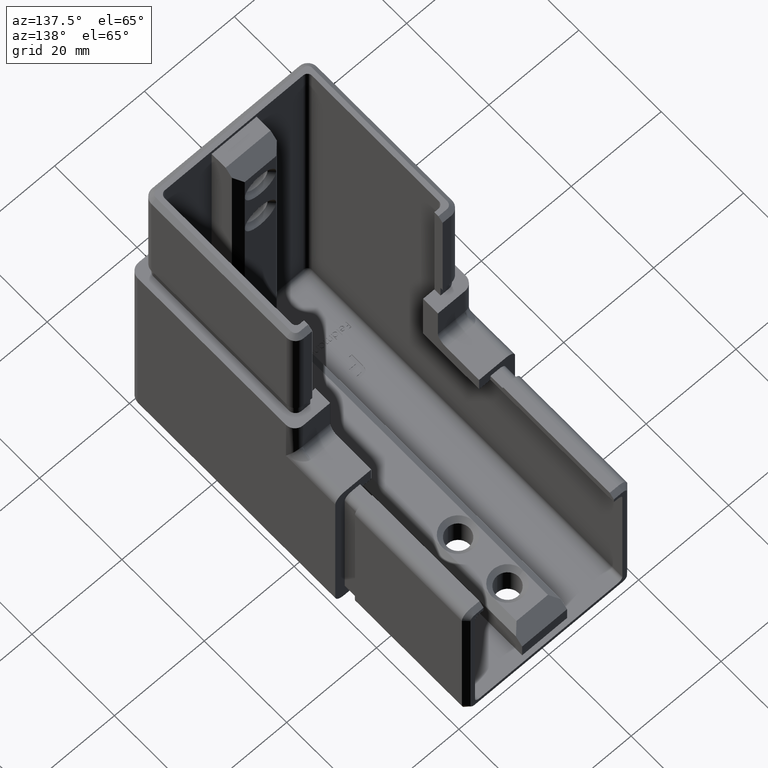
[diagram: clean part render]
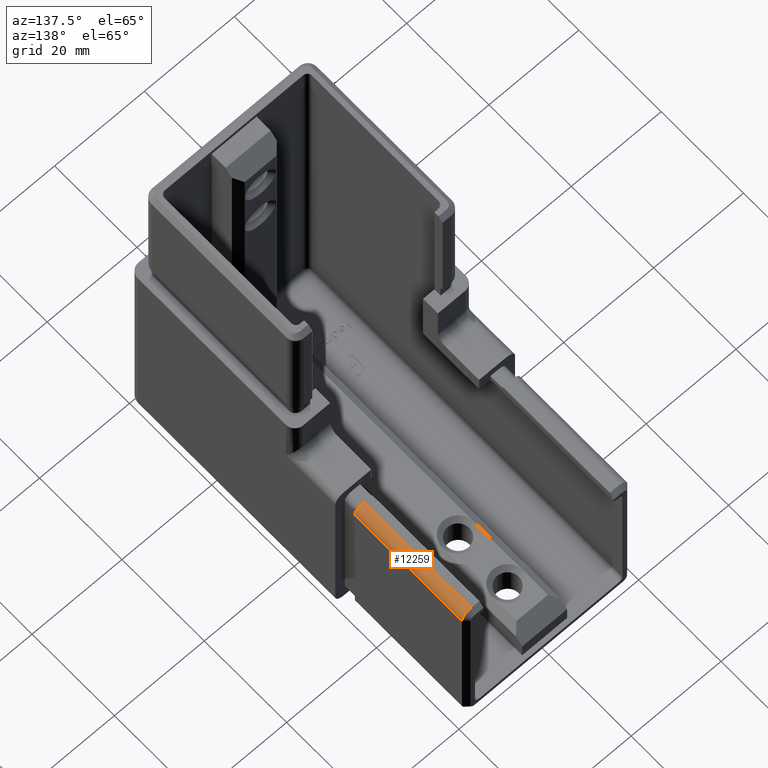
[diagram: same view with one face highlighted and labeled with its STEP entity id]
A machine part, auxiliary view. The second image highlights one B-rep face of the part: STEP entity #12259.
In plain terms, the highlighted cylindrical surface (edge-blend (fillet) strip) has radius 2 mm, axis along (-0, -1, 0).
Its self-contained STEP definition (entity closure, byte-faithful):
#1053 = CARTESIAN_POINT ( 'NONE',  ( 16.40000000000000568, 79.00000000000004263, 38.39999999999995595 ) ) ;
#1754 = LINE ( 'NONE', #17519, #7420 ) ;
#1863 = VERTEX_POINT ( 'NONE', #4917 ) ;
#2100 = VERTEX_POINT ( 'NONE', #4305 ) ;
#3439 = CYLINDRICAL_SURFACE ( 'NONE', #11821, 1.999999999999994893 ) ;
#3926 = DIRECTION ( 'NONE',  ( 0.000000000000000000, 0.000000000000000000, -1.000000000000000000 ) ) ;
#4305 = CARTESIAN_POINT ( 'NONE',  ( 18.39999999999999858, 79.00000000000004263, 36.39999999999995595 ) ) ;
#4586 = EDGE_LOOP ( 'NONE', ( #9836, #5532, #12878, #19099 ) ) ;
#4788 = DIRECTION ( 'NONE',  ( -0.000000000000000000, -1.000000000000000000, 4.440892098500625176E-16 ) ) ;
#4917 = CARTESIAN_POINT ( 'NONE',  ( 16.40000000000000568, 53.00000000000001421, 38.39999999999996305 ) ) ;
#5079 = DIRECTION ( 'NONE',  ( -0.000000000000000000, -1.000000000000000000, 4.440892098500625176E-16 ) ) ;
#5407 = AXIS2_PLACEMENT_3D ( 'NONE', #9685, #12870, #11104 ) ;
#5532 = ORIENTED_EDGE ( 'NONE', *, *, #20159, .T. ) ;
#6425 = CARTESIAN_POINT ( 'NONE',  ( 16.40000000000000568, 80.00000000000001421, 36.39999999999995595 ) ) ;
#6628 = DIRECTION ( 'NONE',  ( -0.000000000000000000, -1.000000000000000000, 4.440892098500625176E-16 ) ) ;
#7420 = VECTOR ( 'NONE', #5079, 1000.000000000000000 ) ;
#7950 = VERTEX_POINT ( 'NONE', #1053 ) ;
#7998 = CIRCLE ( 'NONE', #14519, 1.999999999999994893 ) ;
#8564 = EDGE_CURVE ( 'NONE', #7950, #1863, #1754, .T. ) ;
#8715 = DIRECTION ( 'NONE',  ( 0.000000000000000000, 1.000000000000000000, -4.440892098500625176E-16 ) ) ;
#9382 = DIRECTION ( 'NONE',  ( 0.000000000000000000, 0.000000000000000000, -1.000000000000000000 ) ) ;
#9685 = CARTESIAN_POINT ( 'NONE',  ( 16.40000000000000568, 79.00000000000004263, 36.39999999999995595 ) ) ;
#9836 = ORIENTED_EDGE ( 'NONE', *, *, #8564, .T. ) ;
#10286 = CIRCLE ( 'NONE', #5407, 1.999999999999994893 ) ;
#10323 = VECTOR ( 'NONE', #6628, 1000.000000000000000 ) ;
#11034 = LINE ( 'NONE', #16006, #10323 ) ;
#11104 = DIRECTION ( 'NONE',  ( 0.000000000000000000, 0.000000000000000000, 1.000000000000000000 ) ) ;
#11821 = AXIS2_PLACEMENT_3D ( 'NONE', #6425, #4788, #9382 ) ;
#12094 = CARTESIAN_POINT ( 'NONE',  ( 18.40000000000000213, 53.00000000000000711, 36.39999999999997016 ) ) ;
#12259 = ADVANCED_FACE ( 'NONE', ( #13460 ), #3439, .T. ) ;
#12870 = DIRECTION ( 'NONE',  ( -0.000000000000000000, -1.000000000000000000, -0.000000000000000000 ) ) ;
#12878 = ORIENTED_EDGE ( 'NONE', *, *, #15926, .F. ) ;
#13105 = EDGE_CURVE ( 'NONE', #2100, #7950, #10286, .T. ) ;
#13460 = FACE_OUTER_BOUND ( 'NONE', #4586, .T. ) ;
#13544 = CARTESIAN_POINT ( 'NONE',  ( 16.40000000000000568, 53.00000000000000711, 36.39999999999997016 ) ) ;
#14519 = AXIS2_PLACEMENT_3D ( 'NONE', #13544, #8715, #3926 ) ;
#15926 = EDGE_CURVE ( 'NONE', #2100, #16130, #11034, .T. ) ;
#16006 = CARTESIAN_POINT ( 'NONE',  ( 18.39999999999999858, 80.00000000000001421, 36.39999999999995595 ) ) ;
#16130 = VERTEX_POINT ( 'NONE', #12094 ) ;
#17519 = CARTESIAN_POINT ( 'NONE',  ( 16.40000000000000568, 80.00000000000001421, 38.39999999999995595 ) ) ;
#19099 = ORIENTED_EDGE ( 'NONE', *, *, #13105, .T. ) ;
#20159 = EDGE_CURVE ( 'NONE', #1863, #16130, #7998, .T. ) ;